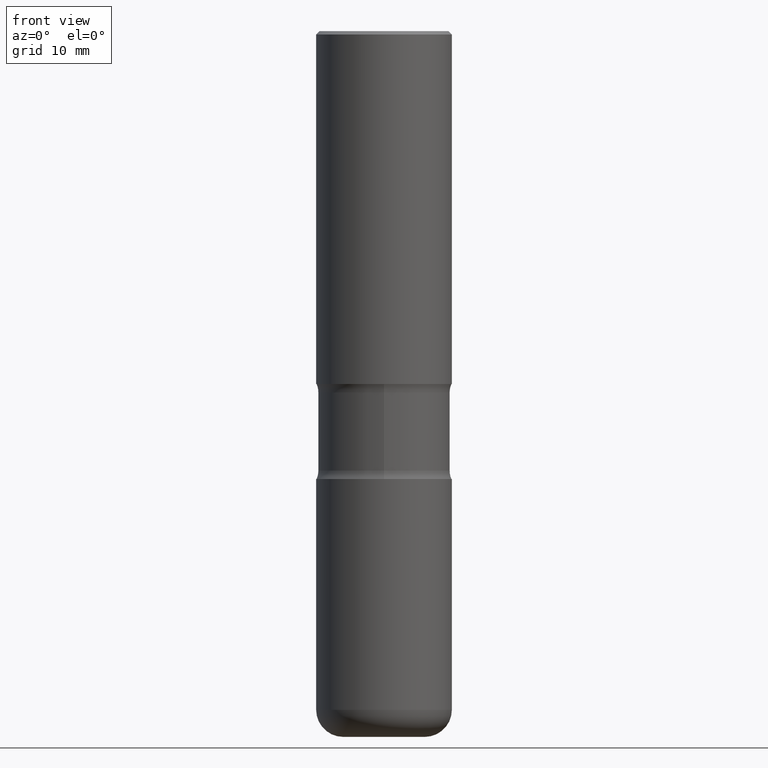
[diagram: clean part render]
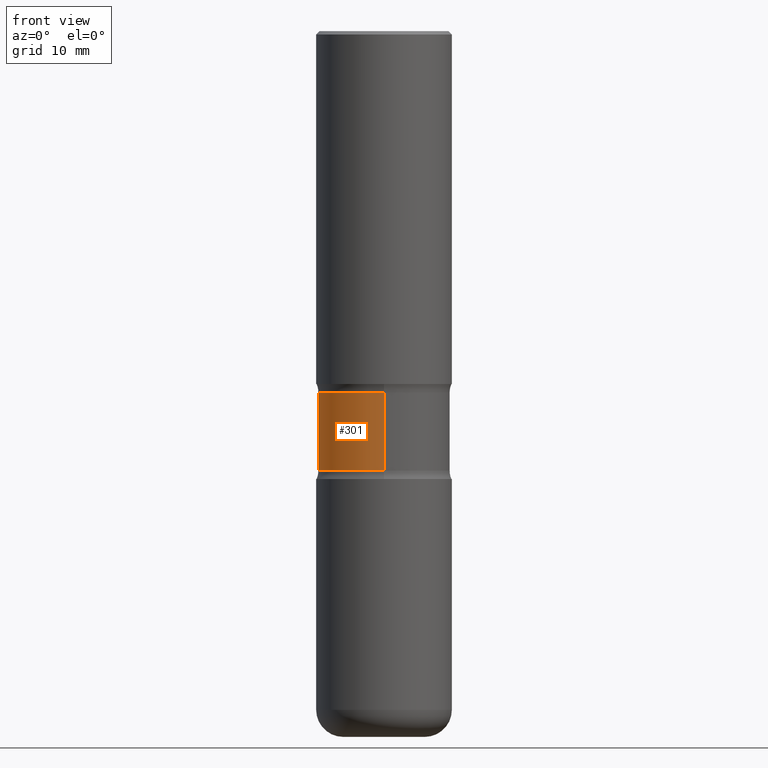
[diagram: same view with one face highlighted and labeled with its STEP entity id]
A machine part, front view. The second image highlights one B-rep face of the part: STEP entity #301.
In plain terms, the highlighted cylindrical surface (partial cylindrical patch) has radius 9.7409 mm, axis along (0, -0, -1).
Its self-contained STEP definition (entity closure, byte-faithful):
#4 = EDGE_CURVE ( 'NONE', #108, #83, #428, .T. ) ;
#13 = DIRECTION ( 'NONE',  ( 6.982962677686265922E-15, 1.000000000000000000, -2.849385130288670661E-15 ) ) ;
#20 = EDGE_CURVE ( 'NONE', #108, #89, #323, .T. ) ;
#23 = CARTESIAN_POINT ( 'NONE',  ( 2.677966186892733991E-15, 0.3834999999999926246, -2.096756647682593400 ) ) ;
#24 = CARTESIAN_POINT ( 'NONE',  ( 1.005866236356776054E-28, -1.423043917928842489E-14, -4.094500000000000028 ) ) ;
#48 = CARTESIAN_POINT ( 'NONE',  ( 6.231851069229550354E-29, -8.901751109387401128E-15, -2.548943352317408095 ) ) ;
#67 = CARTESIAN_POINT ( 'NONE',  ( -2.665989521933967693E-15, -0.3835000000000073905, -2.096756647682590735 ) ) ;
#79 = CIRCLE ( 'NONE', #169, 0.3835000000000000075 ) ;
#83 = VERTEX_POINT ( 'NONE', #23 ) ;
#89 = VERTEX_POINT ( 'NONE', #167 ) ;
#91 = DIRECTION ( 'NONE',  ( 2.476008433645011479E-29, -3.447746854112956519E-15, -1.000000000000000000 ) ) ;
#108 = VERTEX_POINT ( 'NONE', #67 ) ;
#110 = ORIENTED_EDGE ( 'NONE', *, *, #4, .T. ) ;
#137 = FACE_OUTER_BOUND ( 'NONE', #492, .T. ) ;
#142 = CYLINDRICAL_SURFACE ( 'NONE', #287, 0.3835000000000000075 ) ;
#163 = VERTEX_POINT ( 'NONE', #405 ) ;
#165 = DIRECTION ( 'NONE',  ( 6.982962677686265922E-15, 1.000000000000000000, -2.849385130288670661E-15 ) ) ;
#167 = CARTESIAN_POINT ( 'NONE',  ( -2.665989521933955072E-15, -0.3835000000000088893, -2.548943352317407207 ) ) ;
#169 = AXIS2_PLACEMENT_3D ( 'NONE', #48, #394, #13 ) ;
#220 = CARTESIAN_POINT ( 'NONE',  ( 2.677966186892783295E-15, 0.3834999999999857967, -4.094500000000000917 ) ) ;
#237 = DIRECTION ( 'NONE',  ( 2.476008433645011479E-29, -3.447746854112956913E-15, -1.000000000000000000 ) ) ;
#287 = AXIS2_PLACEMENT_3D ( 'NONE', #24, #237, #165 ) ;
#293 = ORIENTED_EDGE ( 'NONE', *, *, #20, .F. ) ;
#301 = ADVANCED_FACE ( 'NONE', ( #137 ), #142, .T. ) ;
#323 = LINE ( 'NONE', #481, #360 ) ;
#333 = ORIENTED_EDGE ( 'NONE', *, *, #471, .T. ) ;
#346 = LINE ( 'NONE', #220, #454 ) ;
#360 = VECTOR ( 'NONE', #91, 39.37007874015748143 ) ;
#369 = AXIS2_PLACEMENT_3D ( 'NONE', #524, #436, #401 ) ;
#394 = DIRECTION ( 'NONE',  ( 2.476008433645011479E-29, -3.447746854112956913E-15, -1.000000000000000000 ) ) ;
#401 = DIRECTION ( 'NONE',  ( 6.982962677686265922E-15, 1.000000000000000000, -3.561731412860838918E-15 ) ) ;
#405 = CARTESIAN_POINT ( 'NONE',  ( 2.677966186892745036E-15, 0.3834999999999911258, -2.548943352317409428 ) ) ;
#423 = EDGE_CURVE ( 'NONE', #89, #163, #79, .T. ) ;
#428 = CIRCLE ( 'NONE', #369, 0.3835000000000000075 ) ;
#436 = DIRECTION ( 'NONE',  ( 2.476008433645011479E-29, -3.447746854112956913E-15, -1.000000000000000000 ) ) ;
#449 = ORIENTED_EDGE ( 'NONE', *, *, #423, .F. ) ;
#454 = VECTOR ( 'NONE', #520, 39.37007874015748143 ) ;
#471 = EDGE_CURVE ( 'NONE', #83, #163, #346, .T. ) ;
#481 = CARTESIAN_POINT ( 'NONE',  ( -2.631000982145281374E-15, -0.3835000000000142184, -4.094499999999998252 ) ) ;
#492 = EDGE_LOOP ( 'NONE', ( #293, #110, #333, #449 ) ) ;
#520 = DIRECTION ( 'NONE',  ( 2.476008433645011479E-29, -3.447746854112956519E-15, -1.000000000000000000 ) ) ;
#524 = CARTESIAN_POINT ( 'NONE',  ( 5.112232974971601928E-29, -7.342725821011008933E-15, -2.096756647682592067 ) ) ;